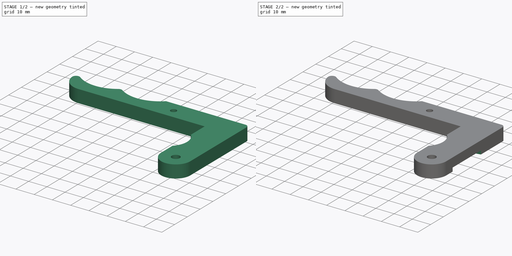
[diagram: build sequence overview — one tinted view per stage of 2, left to right]
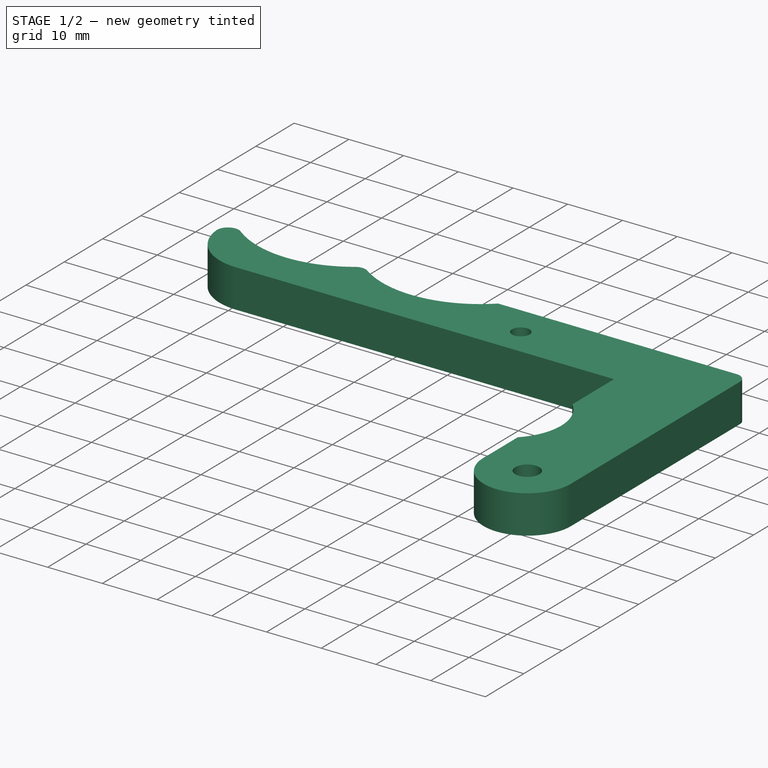
[diagram: stage 1 of 2 — iso view after this stage's code; geometry added in this stage tinted green]
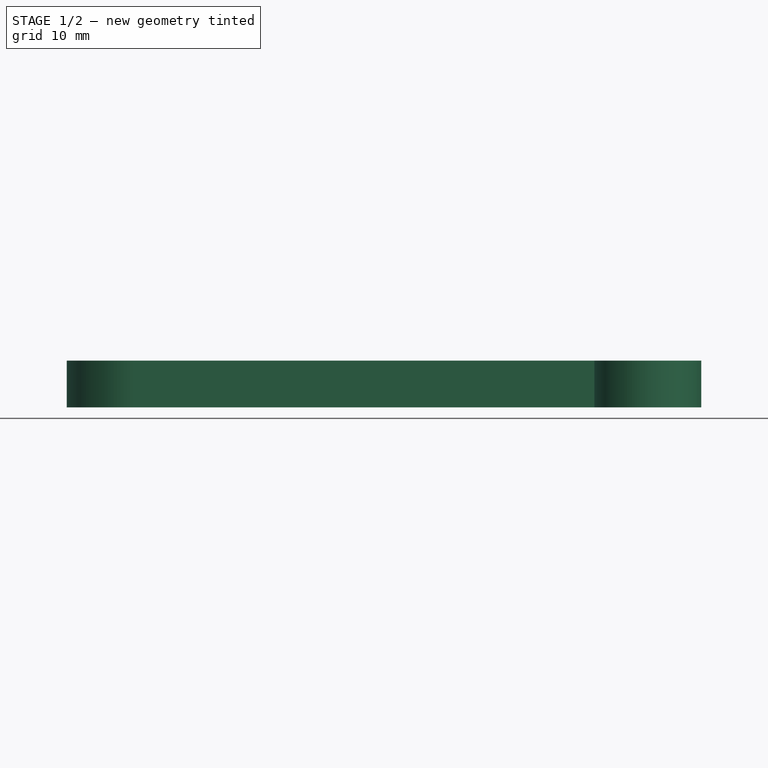
[diagram: stage 1 of 2 — front view after this stage's code; geometry added in this stage tinted green]
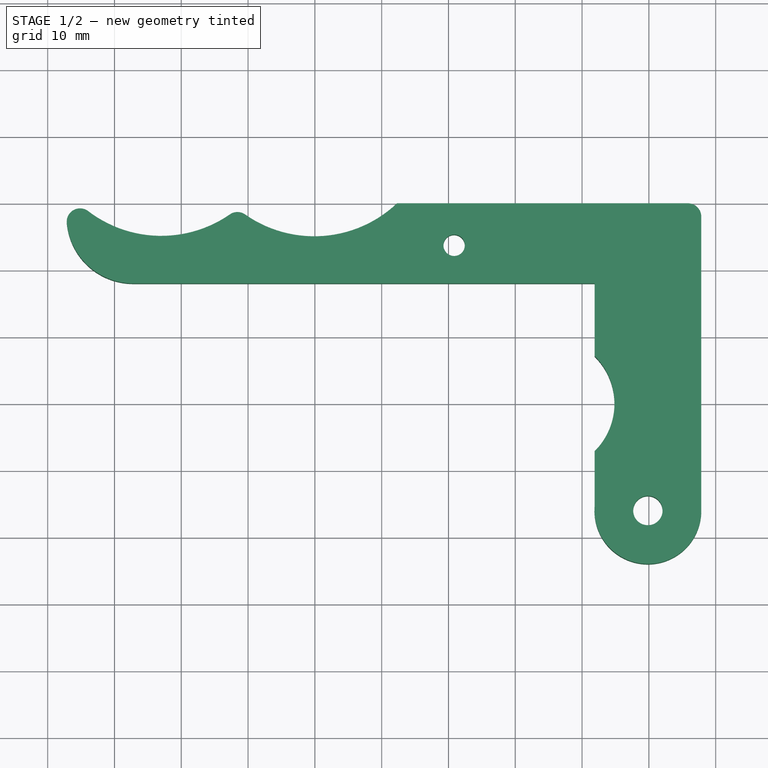
[diagram: stage 1 of 2 — top view after this stage's code; geometry added in this stage tinted green]
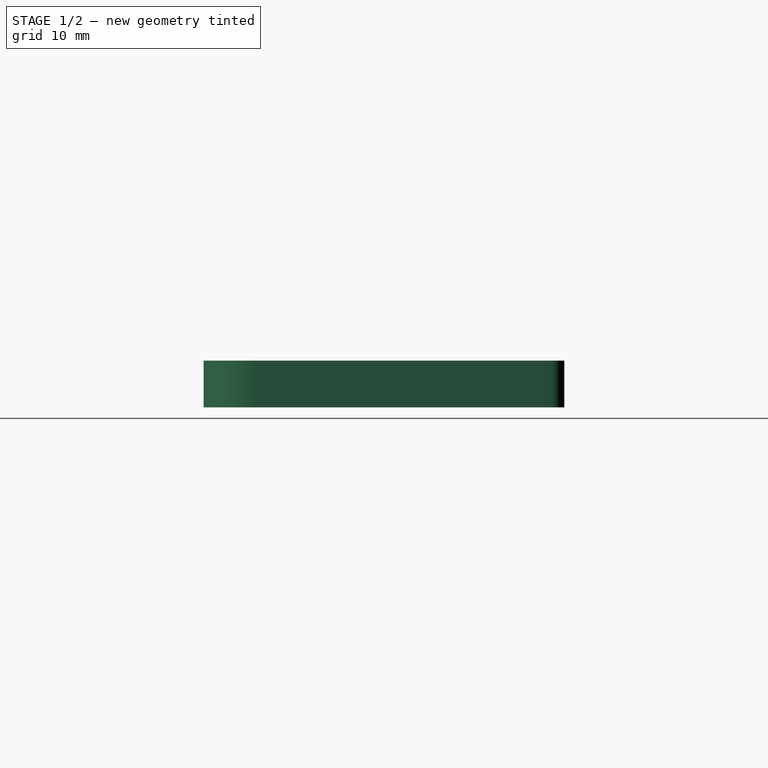
[diagram: stage 1 of 2 — right view after this stage's code; geometry added in this stage tinted green]
FCSTD DOCUMENT  (FreeCAD 0.16R6707 (Git))
Label: hebel
License: All rights reserved
LicenseURL: http://en.wikipedia.org/wiki/All_rights_reserved
objects: Sketcher::SketchObject×2, PartDesign::Pad×1, PartDesign::Pocket×1
note: 6 computed .brp shape members not serialized (recipe doc carries the construction recipe); baked Part::Feature solids carry a one-line shape summary decoded from their .brp

FEATURE [Sketcher::SketchObject] Sketch
  sketch-geometry (15):
    g0: LineSegment StartX=-37.1864 StartY=18 StartZ=0 EndX=31.8756 EndY=18 EndZ=0
    g1: LineSegment StartX=31.8756 StartY=18 StartZ=0 EndX=31.8756 EndY=7.11615 EndZ=0
    g2: LineSegment StartX=31.8756 StartY=-7.11615 StartZ=0 EndX=31.8756 EndY=-15.3593 EndZ=0
    g3: ArcOfCircle CenterX=24.85 CenterY=0 CenterZ=0 NormalX=0 NormalY=0 NormalZ=1 Radius=10 StartAngle=5.49139 EndAngle=7.07498
    g4: ArcOfCircle CenterX=39.85 CenterY=-16 CenterZ=0 NormalX=0 NormalY=0 NormalZ=1 Radius=8 StartAngle=3.06142 EndAngle=6.30835
    g5: LineSegment StartX=47.8474 StartY=-15.7987 StartZ=0 EndX=47.8474 EndY=28 EndZ=0
    g6: LineSegment StartX=45.8474 StartY=30 StartZ=0 EndX=2.29819 EndY=30 EndZ=0
    g7: ArcOfCircle CenterX=-10.0918 CenterY=43.0571 CenterZ=0 NormalX=0 NormalY=0 NormalZ=1 Radius=18 StartAngle=4.09995 EndAngle=5.47158
    g8: ArcOfCircle CenterX=-32.9951 CenterY=43.1209 CenterZ=0 NormalX=0 NormalY=0 NormalZ=1 Radius=18 StartAngle=4.05917 EndAngle=5.31925
    g9: ArcOfCircle CenterX=-21.5892 CenterY=26.6921 CenterZ=0 NormalX=0 NormalY=0 NormalZ=1 Radius=2 StartAngle=0.958355 EndAngle=2.17766
    g10: ArcOfCircle CenterX=-45.15 CenterY=27.2383 CenterZ=0 NormalX=0 NormalY=0 NormalZ=1 Radius=2 StartAngle=0.917575 EndAngle=3.23695
    g11: ArcOfCircle CenterX=-37.1864 CenterY=28 CenterZ=0 NormalX=0 NormalY=0 NormalZ=1 Radius=10 StartAngle=3.23695 EndAngle=4.71239
    g12: ArcOfCircle CenterX=45.8474 CenterY=28 CenterZ=0 NormalX=0 NormalY=0 NormalZ=1 Radius=2 StartAngle=0 EndAngle=1.5708
    g13: Circle CenterX=39.85 CenterY=-16 CenterZ=0 NormalX=0 NormalY=0 NormalZ=1 Radius=2.2
    g14: Circle CenterX=10.8466 CenterY=23.7095 CenterZ=0 NormalX=0 NormalY=0 NormalZ=1 Radius=1.6
  constraints (41):
    c: Horizontal(g0)
    c: Coincident(g0,g1)
    c: Vertical(g1)
    c: Vertical(g2)
    c: PointOnObject(g3,g-1)
    c: Radius(g3) = 10
    c: Coincident(g3,g1)
    c: Coincident(g3,g2)
    c: Coincident(g4,g2)
    c: Vertical(g5)
    c: Horizontal(g6)
    c: Coincident(g7,g6)
    c: Coincident(g9,g7)
    c: Coincident(g9,g8)
    c: Coincident(g10,g8)
    c: Coincident(g11,g0)
    c: Coincident(g11,g10)
    c: Radius(g10) = 2
    c: Radius(g8) = 18
    c: Radius(g7) = 18
    c: Radius(g9) = 2
    c: Radius(g11) = 10
    c: Symmetric(g1,g2,g-1)
    c: Tangent(g6,g12) = -1.5708
    c: Tangent(g5,g12) = -1.5708
    c: Radius(g12) = 2
    c: Coincident(g5,g4)
    c: Radius(g4) = 8
    c: Coincident(g13,g4)
    c: Radius(g13) = 2.2
    c: DistanceY(g0,g6) = 12
    c: DistanceY(g-1,g0) = 18
    c: Tangent(g10,g11)
    c: Tangent(g10,g8)
    c: Tangent(g9,g8)
    c: Tangent(g9,g7)
    c: Tangent(g11,g0)
    c: DistanceY(g4,g-1) = 16
    c: DistanceX(g3,g4) = 15
    c: Radius(g14) = 1.6
    c: DistanceX(g10,g4) = 85
FEATURE [PartDesign::Pad] Pad
  Length = 7
  Length2 = 100
  Sketch = -> Sketch
  Type = 0
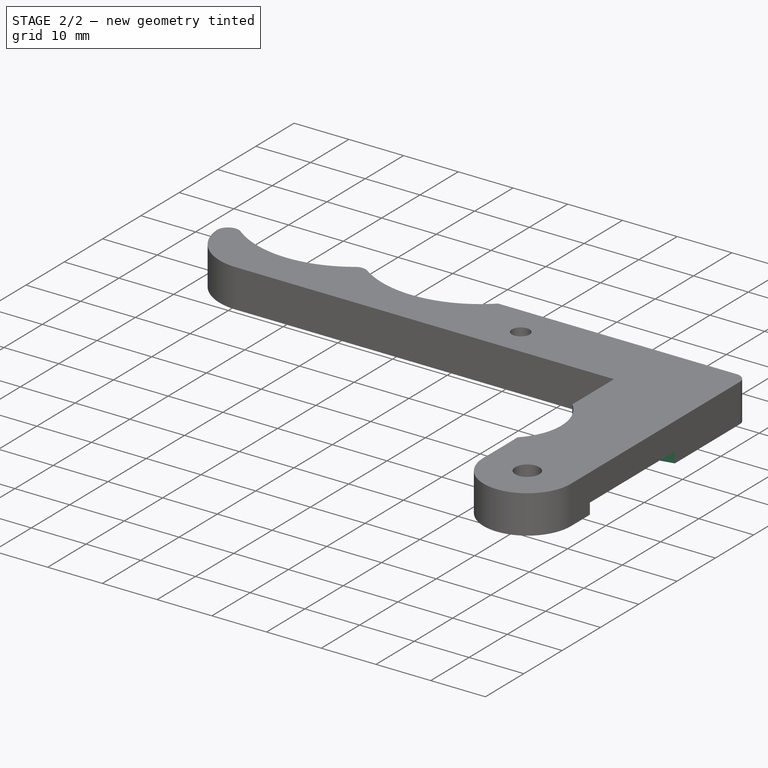
[diagram: stage 2 of 2 — iso view after this stage's code; geometry added in this stage tinted green]
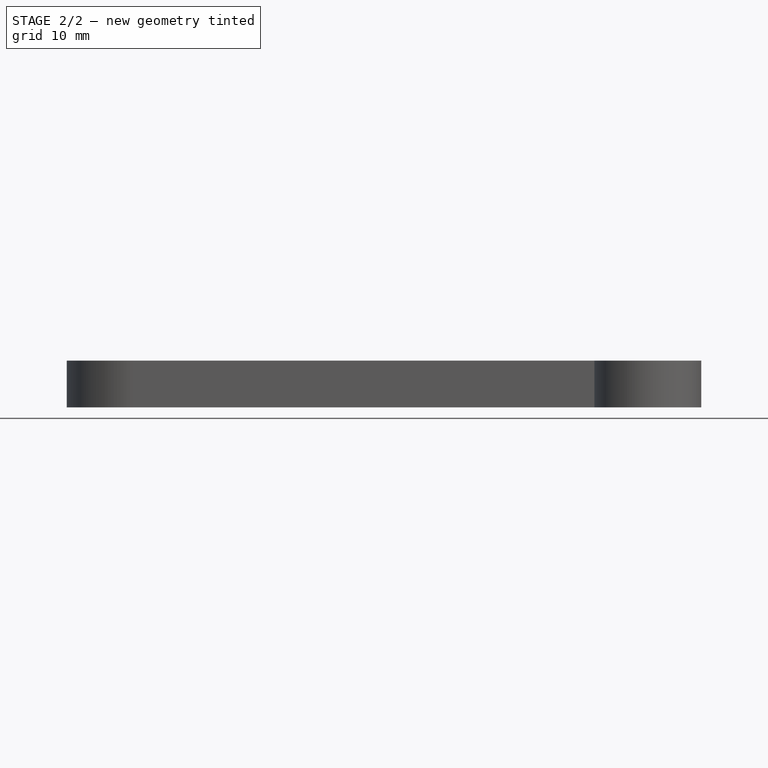
[diagram: stage 2 of 2 — front view after this stage's code; geometry added in this stage tinted green]
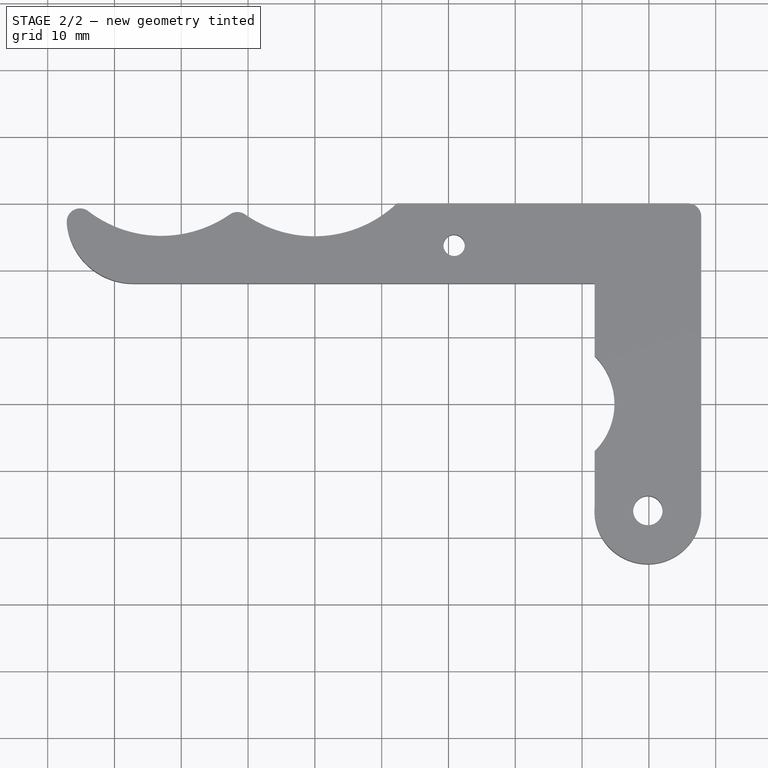
[diagram: stage 2 of 2 — top view after this stage's code; geometry added in this stage tinted green]
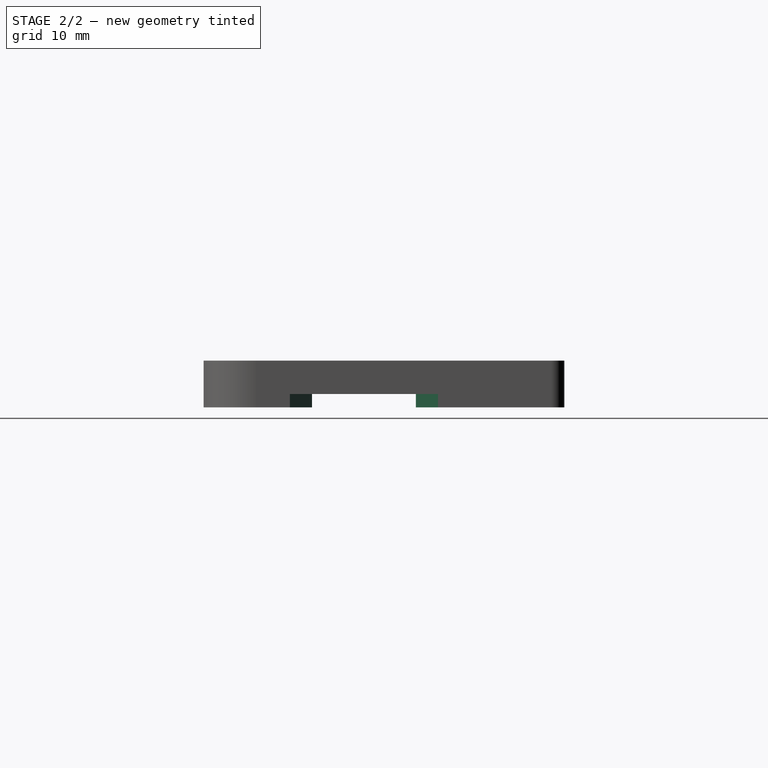
[diagram: stage 2 of 2 — right view after this stage's code; geometry added in this stage tinted green]
FEATURE [Sketcher::SketchObject] Sketch001
  Placement = pos=(0,0,0) rot=(1,0,0;3.14159rad)
  Support = -> Pad [Face16]
  sketch-geometry (4):
    g0: LineSegment StartX=8.88041 StartY=3 StartZ=0 EndX=52.8271 EndY=12.1252 EndZ=0
    g1: LineSegment StartX=52.8271 StartY=12.1252 StartZ=0 EndX=52.8271 EndY=-12.1252 EndZ=0
    g2: LineSegment StartX=52.8271 StartY=-12.1252 StartZ=0 EndX=8.88041 EndY=-3 EndZ=0
    g3: LineSegment StartX=8.88041 StartY=-3 StartZ=0 EndX=8.88041 EndY=3 EndZ=0
  constraints (9):
    c: Coincident(g0,g1)
    c: Coincident(g1,g2)
    c: Coincident(g2,g3)
    c: Coincident(g3,g0)
    c: Vertical(g1)
    c: Vertical(g3)
    c: Symmetric(g0,g2,g-1)
    c: DistanceY(g3,g3) = 6
    c: Symmetric(g1,g0,g-1)
FEATURE [PartDesign::Pocket] Pocket
  Length = 2
  Sketch = -> Sketch001
  Type = 0
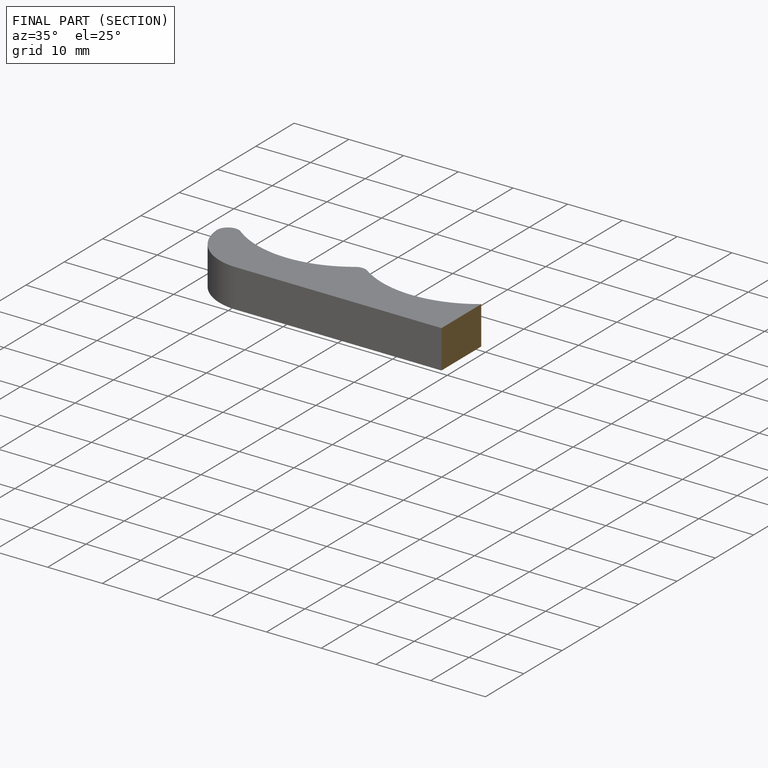
[diagram: finished part — half-section view (interior)]
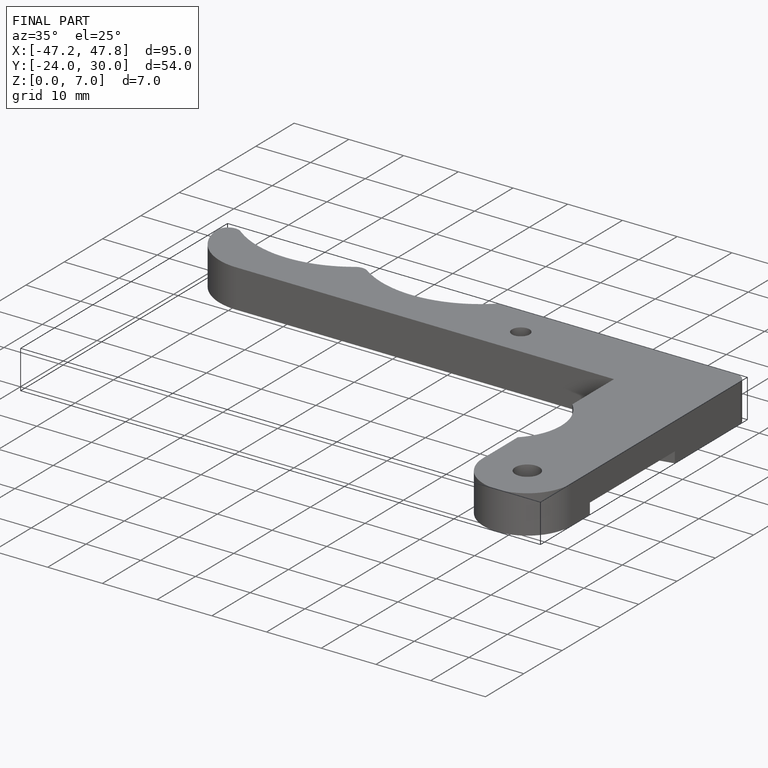
[diagram: finished part — iso view with bounding-box wireframe]
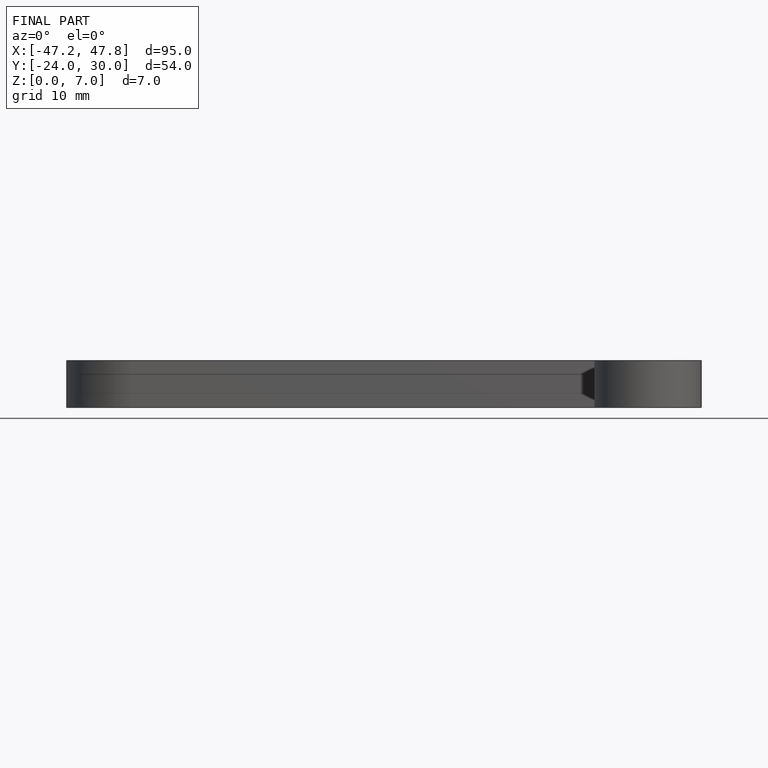
[diagram: finished part — front view with bounding-box wireframe]
